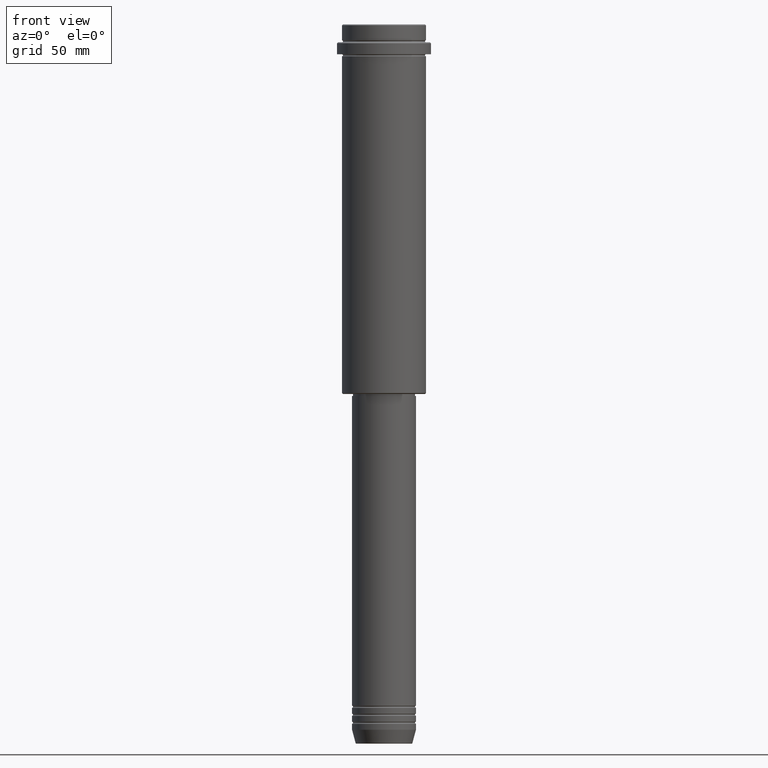
[diagram: clean part render]
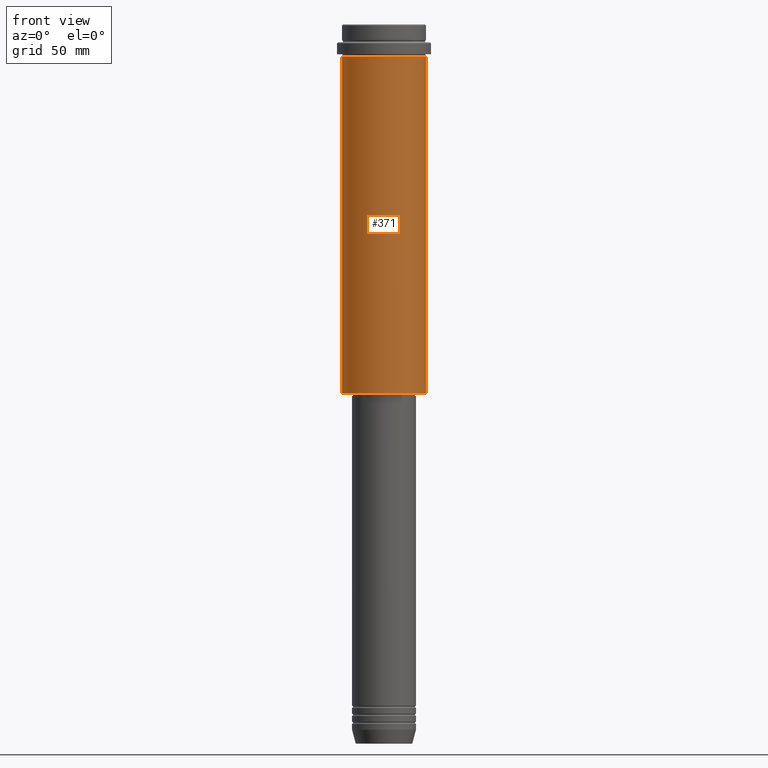
[diagram: same view with one face highlighted and labeled with its STEP entity id]
A machine part, front view. The second image highlights one B-rep face of the part: STEP entity #371.
In plain terms, the highlighted cylindrical surface (partial cylindrical patch) has radius 21 mm, axis along (-0, -0, 1).
Its self-contained STEP definition (entity closure, byte-faithful):
#24 = ORIENTED_EDGE ( 'NONE', *, *, #761, .F. ) ;
#52 = DIRECTION ( 'NONE',  ( -0.000000000000000000, -0.000000000000000000, 1.000000000000000000 ) ) ;
#81 = ORIENTED_EDGE ( 'NONE', *, *, #1052, .F. ) ;
#85 = CARTESIAN_POINT ( 'NONE',  ( 0.000000000000000000, 0.000000000000000000, 0.000000000000000000 ) ) ;
#117 = ORIENTED_EDGE ( 'NONE', *, *, #1030, .T. ) ;
#130 = VERTEX_POINT ( 'NONE', #767 ) ;
#220 = CYLINDRICAL_SURFACE ( 'NONE', #536, 20.99999999999999645 ) ;
#245 = CIRCLE ( 'NONE', #1338, 20.99999999999999645 ) ;
#271 = AXIS2_PLACEMENT_3D ( 'NONE', #1309, #971, #1302 ) ;
#279 = CARTESIAN_POINT ( 'NONE',  ( 20.99999999999999645, 0.000000000000000000, -16.00000000000000355 ) ) ;
#282 = DIRECTION ( 'NONE',  ( -1.000000000000000000, 0.000000000000000000, 0.000000000000000000 ) ) ;
#306 = DIRECTION ( 'NONE',  ( -0.000000000000000000, -0.000000000000000000, 1.000000000000000000 ) ) ;
#330 = FACE_OUTER_BOUND ( 'NONE', #1373, .T. ) ;
#371 = ADVANCED_FACE ( 'NONE', ( #330 ), #220, .T. ) ;
#393 = DIRECTION ( 'NONE',  ( -0.000000000000000000, -0.000000000000000000, 1.000000000000000000 ) ) ;
#400 = CARTESIAN_POINT ( 'NONE',  ( 0.000000000000000000, 0.000000000000000000, -184.5000000000000284 ) ) ;
#536 = AXIS2_PLACEMENT_3D ( 'NONE', #85, #306, #559 ) ;
#559 = DIRECTION ( 'NONE',  ( 1.000000000000000000, 0.000000000000000000, 0.000000000000000000 ) ) ;
#560 = ORIENTED_EDGE ( 'NONE', *, *, #1318, .T. ) ;
#614 = VERTEX_POINT ( 'NONE', #1355 ) ;
#675 = CARTESIAN_POINT ( 'NONE',  ( -20.99999999999999645, 2.571758278209441267E-15, 0.000000000000000000 ) ) ;
#692 = VERTEX_POINT ( 'NONE', #279 ) ;
#753 = CARTESIAN_POINT ( 'NONE',  ( 20.99999999999999645, 0.000000000000000000, 0.000000000000000000 ) ) ;
#761 = EDGE_CURVE ( 'NONE', #945, #614, #915, .T. ) ;
#765 = VECTOR ( 'NONE', #52, 1000.000000000000000 ) ;
#767 = CARTESIAN_POINT ( 'NONE',  ( 20.99999999999999645, 0.000000000000000000, -184.5000000000000284 ) ) ;
#848 = CIRCLE ( 'NONE', #271, 20.99999999999999645 ) ;
#915 = LINE ( 'NONE', #675, #765 ) ;
#945 = VERTEX_POINT ( 'NONE', #1283 ) ;
#962 = DIRECTION ( 'NONE',  ( -0.000000000000000000, -0.000000000000000000, 1.000000000000000000 ) ) ;
#971 = DIRECTION ( 'NONE',  ( -0.000000000000000000, -0.000000000000000000, 1.000000000000000000 ) ) ;
#1030 = EDGE_CURVE ( 'NONE', #130, #692, #1081, .T. ) ;
#1052 = EDGE_CURVE ( 'NONE', #614, #692, #848, .T. ) ;
#1063 = VECTOR ( 'NONE', #962, 1000.000000000000000 ) ;
#1081 = LINE ( 'NONE', #753, #1063 ) ;
#1283 = CARTESIAN_POINT ( 'NONE',  ( -20.99999999999999645, 2.571758278209441267E-15, -184.5000000000000284 ) ) ;
#1302 = DIRECTION ( 'NONE',  ( 1.000000000000000000, 0.000000000000000000, 0.000000000000000000 ) ) ;
#1309 = CARTESIAN_POINT ( 'NONE',  ( 0.000000000000000000, 0.000000000000000000, -16.00000000000000355 ) ) ;
#1318 = EDGE_CURVE ( 'NONE', #945, #130, #245, .T. ) ;
#1338 = AXIS2_PLACEMENT_3D ( 'NONE', #400, #393, #282 ) ;
#1355 = CARTESIAN_POINT ( 'NONE',  ( -20.99999999999999645, 2.571758278209441267E-15, -16.00000000000000355 ) ) ;
#1373 = EDGE_LOOP ( 'NONE', ( #24, #560, #117, #81 ) ) ;